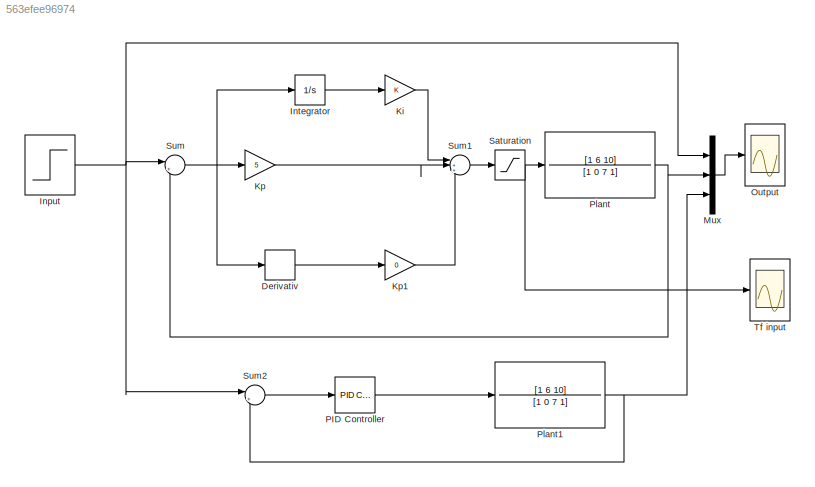
MODEL slx_563efee96974
KIND model
CONFIG AbsTol = auto
CONFIG EnableMultiTasking = off
CONFIG FixedStep = auto
CONFIG MaxStep = auto
CONFIG MinStep = auto
CONFIG RelTol = 1e-3
CONFIG SampleTimeConstraint = Unconstrained
CONFIG SolverName = VariableStepAuto
CONFIG StartTime = 0.0
CONFIG StopTime = 20.0
BLOCK [Derivative] Derivativ
BLOCK [Step] Input
  SampleTime = 0
BLOCK [Integrator] Integrator
BLOCK [Gain] Ki
BLOCK [Gain] Kp
  Gain = 5
BLOCK [Gain] Kp1
  Gain = 0
BLOCK [Mux] Mux
  DisplayOption = bar
  Inputs = 3
BLOCK [Scope] Output
  Floating = off
  NumInputPorts = 1
  ScopeSpecificationString = Simulink.scopes.TimeScopeBlockCfg('CurrentConfiguration', extmgr.ConfigurationSet(extmgr.Configuration('Core','General UI',true),extmgr.Configuration('Core','Source UI',true),extmgr.Configuration('Sources','WiredSimulink',true),extmgr.Configuration('Visuals','Time Domain',true,'SerializedDisplays',{struct('MinYLimReal','-0.1701','MaxYLimReal','1.53087','YLabelReal','','MinYLimMag','0.00000','MaxYL...<+1369ch>
BLOCK [Reference] PID Controller  REF=slpidlib/PID Controller
  LibrarySourceBlock = simulink/Continuous/PID Controller
  SourceBlock = slpidlib/PID Controller
  SourceType = PID 1dof
BLOCK [TransferFcn] Plant
  Denominator = [1 0 7 1]
  Numerator = [1 6 10]
BLOCK [TransferFcn] Plant1
  Denominator = [1 0 7 1]
  Numerator = [1 6 10]
BLOCK [Saturate] Saturation
  LowerLimit = -2
  UpperLimit = 2
BLOCK [Sum] Sum
  Inputs = |+-
BLOCK [Sum] Sum1
  Inputs = |+++
BLOCK [Sum] Sum2
  Inputs = |+-
BLOCK [Scope] Tf input
  Floating = off
  NumInputPorts = 1
  ScopeSpecificationString = Simulink.scopes.TimeScopeBlockCfg('CurrentConfiguration', extmgr.ConfigurationSet(extmgr.Configuration('Core','General UI',true),extmgr.Configuration('Core','Source UI',true),extmgr.Configuration('Sources','WiredSimulink',true,'DataLoggingVariableName','ScopeData1'),extmgr.Configuration('Visuals','Time Domain',true,'SerializedDisplays',{struct('MinYLimReal','-1.5107','MaxYLimReal','2.39008','YLabe...<+1431ch>
LINE Derivativ:1 -> Kp1:1
NET Input:1 -> Mux:1, Sum2:1, Sum:1
LINE Integrator:1 -> Ki:1
LINE Ki:1 -> Sum1:1
LINE Kp1:1 -> Sum1:3
LINE Kp:1 -> Sum1:2
LINE Mux:1 -> Output:1
LINE PID Controller:1 -> Plant1:1
NET Plant1:1 -> Mux:3, Sum2:2
NET Plant:1 -> Mux:2, Sum:2
NET Saturation:1 -> Plant:1, Tf input:1
LINE Sum1:1 -> Saturation:1
LINE Sum2:1 -> PID Controller:1
NET Sum:1 -> Derivativ:1, Integrator:1, Kp:1
note: NET lines group one-source signal fan-out (src -> all destinations, sorted); 1:1 wires keep LINE
